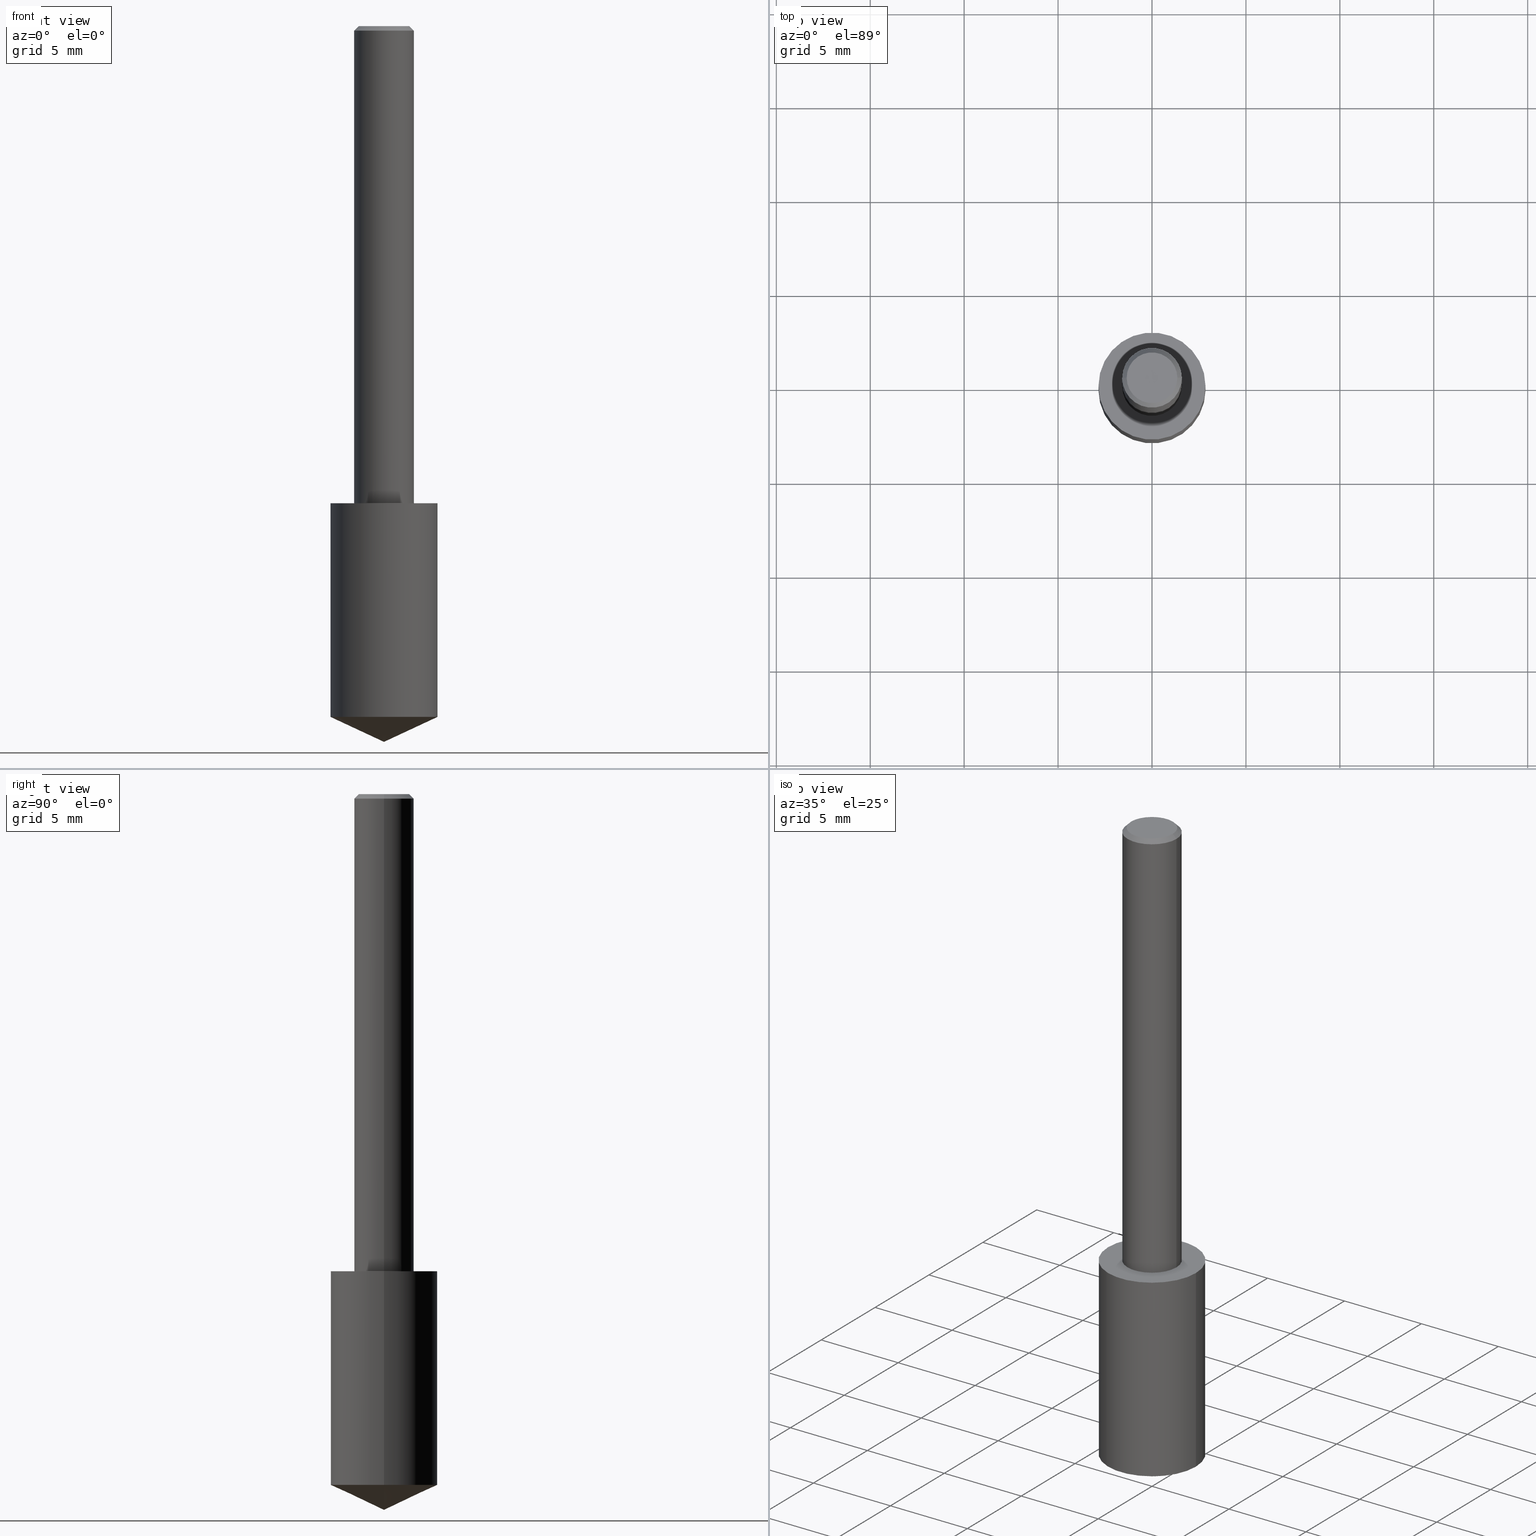
[diagram: canonical four-view strip — front | top / right | iso, engineering-drawing reading convention]
A machine part, canonical four-view strip (front | top / right | iso — engineering-drawing reading convention). The complete STEP part file that produces these views, byte-faithful:
ISO-10303-21;
HEADER;
FILE_DESCRIPTION (( 'STEP AP203' ),
    '1' );
FILE_NAME ('06154.STEP',
    '2024-04-30T18:31:42',
    ( '' ),
    ( '' ),
    'SwSTEP 2.0',
    'SolidWorks 2023',
    '' );
FILE_SCHEMA (( 'CONFIG_CONTROL_DESIGN' ));
ENDSEC;

DATA;
#1 = VECTOR ( 'NONE', #71, 39.37007874015748143 ) ;
#2 = CARTESIAN_POINT ( 'NONE',  ( 0.000000000000000000, 0.000000000000000000, 0.000000000000000000 ) ) ;
#3 = CARTESIAN_POINT ( 'NONE',  ( -7.487088864773345706E-50, 1.068957861474247695E-35, 3.061616997868395197E-21 ) ) ;
#4 = VERTEX_POINT ( 'NONE', #61 ) ;
#5 = ADVANCED_FACE ( 'NONE', ( #219 ), #203, .T. ) ;
#6 = COORDINATED_UNIVERSAL_TIME_OFFSET ( 5, 0, .BEHIND. ) ;
#7 = ORIENTED_EDGE ( 'NONE', *, *, #73, .T. ) ;
#8 = AXIS2_PLACEMENT_3D ( 'NONE', #19, #229, #197 ) ;
#9 = ORIENTED_EDGE ( 'NONE', *, *, #80, .F. ) ;
#10 = DIRECTION ( 'NONE',  ( -2.445468806185136597E-29, 3.491481338843145583E-15, 1.000000000000000000 ) ) ;
#11 = ADVANCED_FACE ( 'NONE', ( #253 ), #218, .T. ) ;
#12 = DIRECTION ( 'NONE',  ( 1.000000000000000000, -6.982962677686266711E-15, 0.000000000000000000 ) ) ;
#13 = ORIENTED_EDGE ( 'NONE', *, *, #117, .T. ) ;
#14 = DIRECTION ( 'NONE',  ( -2.445468806185136597E-29, 3.491481338843145583E-15, 1.000000000000000000 ) ) ;
#15 = AXIS2_PLACEMENT_3D ( 'NONE', #40, #328, #192 ) ;
#16 = CC_DESIGN_DATE_AND_TIME_ASSIGNMENT ( #148, #256, ( #119 ) ) ;
#17 = CARTESIAN_POINT ( 'NONE',  ( 0.06250000000000000000, -4.615137624123754923E-16, -0.009375000000000067307 ) ) ;
#18 = DIRECTION ( 'NONE',  ( 1.000000000000000000, -6.982962677686266711E-15, 4.876176775795935793E-29 ) ) ;
#19 = CARTESIAN_POINT ( 'NONE',  ( 2.445468806185137438E-29, -3.491481338843146371E-15, -1.000000000000000222 ) ) ;
#20 = CARTESIAN_POINT ( 'NONE',  ( 0.05312499999999999861, -4.129888592719939842E-16, 3.061617000609493422E-21 ) ) ;
#21 = PERSON_AND_ORGANIZATION ( #316, #317 ) ;
#22 = VECTOR ( 'NONE', #162, 39.37007874015748143 ) ;
#23 = EDGE_CURVE ( 'NONE', #191, #187, #283, .T. ) ;
#24 = DIRECTION ( 'NONE',  ( 1.000000000000000000, 0.000000000000000000, 0.000000000000000000 ) ) ;
#25 = EDGE_LOOP ( 'NONE', ( #326, #85 ) ) ;
#26 = DIRECTION ( 'NONE',  ( -2.445468806185136877E-29, 3.491481338843145188E-15, 1.000000000000000000 ) ) ;
#27 = CIRCLE ( 'NONE', #15, 0.1122000000000000081 ) ;
#28 = DIRECTION ( 'NONE',  ( 0.000000000000000000, 0.000000000000000000, 1.000000000000000000 ) ) ;
#29 = AXIS2_PLACEMENT_3D ( 'NONE', #280, #113, #223 ) ;
#30 = PERSON_AND_ORGANIZATION_ROLE ( 'classification_officer' ) ;
#31 = DIRECTION ( 'NONE',  ( -2.445468806185136597E-29, 3.491481338843145583E-15, 1.000000000000000000 ) ) ;
#32 = ORIENTED_EDGE ( 'NONE', *, *, #117, .F. ) ;
#33 = CARTESIAN_POINT ( 'NONE',  ( 3.668203209277704895E-29, -5.237222008264718177E-15, -1.500000000000000222 ) ) ;
#34 = VERTEX_POINT ( 'NONE', #108 ) ;
#35 = MANIFOLD_SOLID_BREP ( 'Body-Move/Copy2[1]', #49 ) ;
#36 = ORIENTED_EDGE ( 'NONE', *, *, #255, .T. ) ;
#37 =( GEOMETRIC_REPRESENTATION_CONTEXT ( 3 ) GLOBAL_UNCERTAINTY_ASSIGNED_CONTEXT ( ( #133 ) ) GLOBAL_UNIT_ASSIGNED_CONTEXT ( ( #286, #102, #126 ) ) REPRESENTATION_CONTEXT ( 'NONE', 'WORKASPACE' ) );
#38 = LINE ( 'NONE', #169, #158 ) ;
#39 = EDGE_LOOP ( 'NONE', ( #64, #318, #333 ) ) ;
#40 = CARTESIAN_POINT ( 'NONE',  ( 3.540256967915716631E-29, -5.054548684867320994E-15, -1.447680280755009541 ) ) ;
#41 = VERTEX_POINT ( 'NONE', #159 ) ;
#42 = DIRECTION ( 'NONE',  ( 1.000000000000000000, -6.982962677686264344E-15, 0.000000000000000000 ) ) ;
#43 = EDGE_CURVE ( 'NONE', #164, #194, #213, .T. ) ;
#44 = CARTESIAN_POINT ( 'NONE',  ( 0.1121999999999999803, -5.838037097303720195E-15, -1.447680280755009541 ) ) ;
#45 = DIRECTION ( 'NONE',  ( -2.445468806185136597E-29, 3.491481338843145583E-15, 1.000000000000000000 ) ) ;
#46 = CALENDAR_DATE ( 2024, 30, 4 ) ;
#47 = FACE_OUTER_BOUND ( 'NONE', #295, .T. ) ;
#48 = EDGE_CURVE ( 'NONE', #291, #191, #268, .T. ) ;
#49 = CLOSED_SHELL ( 'NONE', ( #52, #5, #264, #226, #129 ) ) ;
#50 = PERSON_AND_ORGANIZATION ( #316, #317 ) ;
#51 = CARTESIAN_POINT ( 'NONE',  ( 0.1122000000000000081, -4.274969751279545967E-15, -1.000000000000000222 ) ) ;
#52 = ADVANCED_FACE ( 'NONE', ( #246 ), #178, .T. ) ;
#53 = APPLICATION_PROTOCOL_DEFINITION ( 'international standard', 'config_control_design', 1994, #199 ) ;
#54 = AXIS2_PLACEMENT_3D ( 'NONE', #195, #45, #97 ) ;
#55 = SECURITY_CLASSIFICATION_LEVEL ( 'unclassified' ) ;
#56 = CARTESIAN_POINT ( 'NONE',  ( -9.261009624683002666E-28, 1.322226732217803884E-13, 37.87007874015748143 ) ) ;
#57 = CALENDAR_DATE ( 2024, 30, 4 ) ;
#58 = AXIS2_PLACEMENT_3D ( 'NONE', #330, #251, #42 ) ;
#59 = ORIENTED_EDGE ( 'NONE', *, *, #131, .T. ) ;
#60 = DIRECTION ( 'NONE',  ( -2.445468806185136597E-29, 3.491481338843145583E-15, 1.000000000000000000 ) ) ;
#61 = CARTESIAN_POINT ( 'NONE',  ( -0.05312499999999999861, 3.873362110279099094E-16, 3.061616995216862494E-21 ) ) ;
#62 = ORIENTED_EDGE ( 'NONE', *, *, #48, .T. ) ;
#63 = APPROVAL ( #163, 'UNSPECIFIED' ) ;
#64 = ORIENTED_EDGE ( 'NONE', *, *, #48, .F. ) ;
#65 = VECTOR ( 'NONE', #238, 39.37007874015748143 ) ;
#66 = CARTESIAN_POINT ( 'NONE',  ( -0.1122000000000000081, -2.694252389320313807E-15, -1.000000000000000222 ) ) ;
#67 = CARTESIAN_POINT ( 'NONE',  ( 2.292627005798582375E-31, -3.273263755165472650E-17, -0.009375000000000067307 ) ) ;
#68 = DIRECTION ( 'NONE',  ( -2.445468806185136597E-29, 3.491481338843145583E-15, 1.000000000000000000 ) ) ;
#69 = CARTESIAN_POINT ( 'NONE',  ( 3.295575427436013653E-29, -2.274080272147841464E-15, -1.000000000000000222 ) ) ;
#70 = DIRECTION ( 'NONE',  ( -2.445468806185136597E-29, 3.491481338843145583E-15, 1.000000000000000000 ) ) ;
#71 = DIRECTION ( 'NONE',  ( -0.7071067811865450192, 2.468850131082230634E-15, -0.7071067811865500152 ) ) ;
#72 = CLOSED_SHELL ( 'NONE', ( #107, #11, #141, #84, #301, #232 ) ) ;
#73 = EDGE_CURVE ( 'NONE', #4, #89, #304, .T. ) ;
#74 = DIRECTION ( 'NONE',  ( -2.445468806185136597E-29, 3.491481338843145583E-15, 1.000000000000000000 ) ) ;
#75 = APPROVAL ( #123, 'UNSPECIFIED' ) ;
#76 = PERSON_AND_ORGANIZATION_ROLE ( 'creator' ) ;
#77 = CIRCLE ( 'NONE', #234, 0.1122000000000000081 ) ;
#78 = DIRECTION ( 'NONE',  ( 2.445468806185136597E-29, -3.491481338843145583E-15, -1.000000000000000000 ) ) ;
#79 = DIRECTION ( 'NONE',  ( -2.445468806185136597E-29, 3.491481338843145583E-15, 1.000000000000000000 ) ) ;
#80 = EDGE_CURVE ( 'NONE', #214, #164, #274, .T. ) ;
#81 = ORIENTED_EDGE ( 'NONE', *, *, #298, .T. ) ;
#82 = AXIS2_PLACEMENT_3D ( 'NONE', #153, #28, #24 ) ;
#83 = DATE_AND_TIME ( #57, #145 ) ;
#84 = ADVANCED_FACE ( 'NONE', ( #87 ), #332, .T. ) ;
#85 = ORIENTED_EDGE ( 'NONE', *, *, #188, .T. ) ;
#86 = ORIENTED_EDGE ( 'NONE', *, *, #327, .T. ) ;
#87 = FACE_OUTER_BOUND ( 'NONE', #134, .T. ) ;
#88 = ORIENTED_EDGE ( 'NONE', *, *, #23, .T. ) ;
#89 = VERTEX_POINT ( 'NONE', #20 ) ;
#90 = DIRECTION ( 'NONE',  ( 1.000000000000000000, -6.982962677686266711E-15, 0.000000000000000000 ) ) ;
#91 = ADVANCED_BREP_SHAPE_REPRESENTATION ( '06154', ( #35, #263, #82 ), #37 ) ;
#92 = CC_DESIGN_PERSON_AND_ORGANIZATION_ASSIGNMENT ( #216, #30, ( #289 ) ) ;
#93 = ORIENTED_EDGE ( 'NONE', *, *, #202, .T. ) ;
#94 = DIRECTION ( 'NONE',  ( 1.000000000000000000, -6.982962677686266711E-15, 0.000000000000000000 ) ) ;
#95 = FACE_OUTER_BOUND ( 'NONE', #271, .T. ) ;
#96 = LINE ( 'NONE', #300, #1 ) ;
#97 = DIRECTION ( 'NONE',  ( 1.000000000000000000, -6.982962677686266711E-15, 4.876176628004948512E-29 ) ) ;
#98 = CIRCLE ( 'NONE', #144, 0.06250000000000000000 ) ;
#99 = COORDINATED_UNIVERSAL_TIME_OFFSET ( 5, 0, .BEHIND. ) ;
#100 = FACE_OUTER_BOUND ( 'NONE', #135, .T. ) ;
#101 = AXIS2_PLACEMENT_3D ( 'NONE', #69, #325, #225 ) ;
#102 =( NAMED_UNIT ( * ) PLANE_ANGLE_UNIT ( ) SI_UNIT ( $, .RADIAN. ) );
#103 = ORIENTED_EDGE ( 'NONE', *, *, #255, .F. ) ;
#104 = CALENDAR_DATE ( 2024, 30, 4 ) ;
#105 = DATE_TIME_ROLE ( 'classification_date' ) ;
#106 = AXIS2_PLACEMENT_3D ( 'NONE', #56, #70, #240 ) ;
#107 = ADVANCED_FACE ( 'NONE', ( #47 ), #266, .T. ) ;
#108 = CARTESIAN_POINT ( 'NONE',  ( -0.1122000000000000081, -3.475786062332401316E-15, -1.000000000000000222 ) ) ;
#109 = ORIENTED_EDGE ( 'NONE', *, *, #131, .F. ) ;
#110 = AXIS2_PLACEMENT_3D ( 'NONE', #121, #228, #307 ) ;
#111 = EDGE_LOOP ( 'NONE', ( #81, #139, #272, #161 ) ) ;
#112 = CARTESIAN_POINT ( 'NONE',  ( 0.000000000000000000, 0.000000000000000000, 0.000000000000000000 ) ) ;
#113 = DIRECTION ( 'NONE',  ( -2.445468806185136597E-29, 3.491481338843145583E-15, 1.000000000000000000 ) ) ;
#114 = EDGE_CURVE ( 'NONE', #194, #243, #210, .T. ) ;
#115 = DIRECTION ( 'NONE',  ( 1.000000000000000000, -6.982962677686265922E-15, 4.876176775795935793E-29 ) ) ;
#116 = VECTOR ( 'NONE', #276, 39.37007874015748143 ) ;
#117 = EDGE_CURVE ( 'NONE', #214, #243, #38, .T. ) ;
#118 = PLANE ( 'NONE',  #101 ) ;
#119 = PRODUCT_DEFINITION ( 'UNKNOWN', '', #132, #181 ) ;
#120 = CARTESIAN_POINT ( 'NONE',  ( 0.06250000000000012490, -3.927916506198539224E-15, -1.000000000000000222 ) ) ;
#121 = CARTESIAN_POINT ( 'NONE',  ( 3.540256967915716631E-29, -5.054548684867320994E-15, -1.447680280755009541 ) ) ;
#122 = DIRECTION ( 'NONE',  ( 0.9063077870366507138, -4.853149677051390623E-15, 0.4226182617406978315 ) ) ;
#123 = APPROVAL_STATUS ( 'not_yet_approved' ) ;
#124 = MECHANICAL_CONTEXT ( 'NONE', #199, 'mechanical' ) ;
#125 = PRODUCT ( '06154', '06154', '', ( #124 ) ) ;
#126 =( NAMED_UNIT ( * ) SI_UNIT ( $, .STERADIAN. ) SOLID_ANGLE_UNIT ( ) );
#127 = AXIS2_PLACEMENT_3D ( 'NONE', #334, #273, #277 ) ;
#128 = APPROVAL_ROLE ( '' ) ;
#129 = ADVANCED_FACE ( 'NONE', ( #193 ), #118, .F. ) ;
#130 = AXIS2_PLACEMENT_3D ( 'NONE', #112, #305, #258 ) ;
#131 = EDGE_CURVE ( 'NONE', #164, #214, #299, .T. ) ;
#132 = PRODUCT_DEFINITION_FORMATION_WITH_SPECIFIED_SOURCE ( 'ANY', '', #125, .NOT_KNOWN. ) ;
#133 = UNCERTAINTY_MEASURE_WITH_UNIT (LENGTH_MEASURE( 1.000000000000000082E-05 ), #286, 'distance_accuracy_value', 'NONE');
#134 = EDGE_LOOP ( 'NONE', ( #242, #59, #13, #137 ) ) ;
#135 = EDGE_LOOP ( 'NONE', ( #184, #320, #36, #217 ) ) ;
#136 = VECTOR ( 'NONE', #26, 39.37007874015748143 ) ;
#137 = ORIENTED_EDGE ( 'NONE', *, *, #114, .F. ) ;
#138 = CYLINDRICAL_SURFACE ( 'NONE', #8, 0.1122000000000000081 ) ;
#139 = ORIENTED_EDGE ( 'NONE', *, *, #292, .T. ) ;
#140 = LINE ( 'NONE', #66, #173 ) ;
#141 = ADVANCED_FACE ( 'NONE', ( #95 ), #302, .F. ) ;
#142 = ORIENTED_EDGE ( 'NONE', *, *, #152, .F. ) ;
#143 = FACE_OUTER_BOUND ( 'NONE', #209, .T. ) ;
#144 = AXIS2_PLACEMENT_3D ( 'NONE', #335, #149, #155 ) ;
#145 = LOCAL_TIME ( 14, 31, 42.00000000000000000, #340 ) ;
#146 = CARTESIAN_POINT ( 'NONE',  ( -0.1121999999999999803, -4.257319735344488824E-15, -1.447680280755009541 ) ) ;
#147 = DIRECTION ( 'NONE',  ( -2.445468806185136877E-29, 3.491481338843145188E-15, 1.000000000000000000 ) ) ;
#148 = DATE_AND_TIME ( #46, #186 ) ;
#149 = DIRECTION ( 'NONE',  ( -2.445468806185136597E-29, 3.491481338843145583E-15, 1.000000000000000000 ) ) ;
#150 = VECTOR ( 'NONE', #122, 39.37007874015748143 ) ;
#151 = CC_DESIGN_PERSON_AND_ORGANIZATION_ASSIGNMENT ( #201, #76, ( #132 ) ) ;
#152 = EDGE_CURVE ( 'NONE', #291, #187, #297, .T. ) ;
#153 = CARTESIAN_POINT ( 'NONE',  ( 0.000000000000000000, 0.000000000000000000, 0.000000000000000000 ) ) ;
#154 = PRODUCT_DEFINITION_SHAPE ( 'NONE', 'NONE',  #119 ) ;
#155 = DIRECTION ( 'NONE',  ( 1.000000000000000000, -6.982962677686266711E-15, 0.000000000000000000 ) ) ;
#156 = CC_DESIGN_PERSON_AND_ORGANIZATION_ASSIGNMENT ( #207, #176, ( #119 ) ) ;
#157 = COORDINATED_UNIVERSAL_TIME_OFFSET ( 5, 0, .BEHIND. ) ;
#158 = VECTOR ( 'NONE', #147, 39.37007874015748143 ) ;
#159 = CARTESIAN_POINT ( 'NONE',  ( 0.1122000000000000081, -4.274969751279545178E-15, -1.000000000000000222 ) ) ;
#160 = AXIS2_PLACEMENT_3D ( 'NONE', #175, #10, #90 ) ;
#161 = ORIENTED_EDGE ( 'NONE', *, *, #327, .F. ) ;
#162 = DIRECTION ( 'NONE',  ( -2.445468806185136877E-29, 3.491481338843145188E-15, 1.000000000000000000 ) ) ;
#163 = APPROVAL_STATUS ( 'not_yet_approved' ) ;
#164 = VERTEX_POINT ( 'NONE', #248 ) ;
#165 = APPROVAL_PERSON_ORGANIZATION ( #204, #288, #128 ) ;
#166 = APPROVAL_PERSON_ORGANIZATION ( #21, #75, #231 ) ;
#167 = ORIENTED_EDGE ( 'NONE', *, *, #189, .T. ) ;
#168 = DIRECTION ( 'NONE',  ( -2.445468806185136877E-29, 3.491481338843145188E-15, 1.000000000000000000 ) ) ;
#169 = CARTESIAN_POINT ( 'NONE',  ( 0.06250000000000006939, -4.364351673553921624E-16, 3.047610484872463374E-30 ) ) ;
#170 = CC_DESIGN_PERSON_AND_ORGANIZATION_ASSIGNMENT ( #315, #235, ( #125 ) ) ;
#171 = DIRECTION ( 'NONE',  ( -2.438088387897960049E-29, 3.491481338843145188E-15, 1.000000000000000000 ) ) ;
#172 = EDGE_CURVE ( 'NONE', #41, #34, #215, .T. ) ;
#173 = VECTOR ( 'NONE', #168, 39.37007874015748143 ) ;
#174 = LOCAL_TIME ( 14, 31, 42.00000000000000000, #6 ) ;
#175 = CARTESIAN_POINT ( 'NONE',  ( -9.261009624683002666E-28, 1.322226732217803884E-13, 37.87007874015748143 ) ) ;
#176 = PERSON_AND_ORGANIZATION_ROLE ( 'creator' ) ;
#177 = APPROVAL_DATE_TIME ( #233, #75 ) ;
#178 = CYLINDRICAL_SURFACE ( 'NONE', #224, 0.1122000000000000081 ) ;
#179 = AXIS2_PLACEMENT_3D ( 'NONE', #245, #171, #115 ) ;
#180 = CARTESIAN_POINT ( 'NONE',  ( 2.292627005798582375E-31, -3.273263755165472650E-17, -0.009375000000000067307 ) ) ;
#181 = DESIGN_CONTEXT ( 'detailed design', #222, 'design' ) ;
#182 = CC_DESIGN_SECURITY_CLASSIFICATION ( #289, ( #132 ) ) ;
#183 = SHAPE_DEFINITION_REPRESENTATION ( #154, #91 ) ;
#184 = ORIENTED_EDGE ( 'NONE', *, *, #202, .F. ) ;
#185 = CARTESIAN_POINT ( 'NONE',  ( -0.06250000000000006939, 4.440892098500631092E-16, -3.074334431409319267E-30 ) ) ;
#186 = LOCAL_TIME ( 14, 31, 42.00000000000000000, #281 ) ;
#187 = VERTEX_POINT ( 'NONE', #44 ) ;
#188 = EDGE_CURVE ( 'NONE', #34, #41, #77, .T. ) ;
#189 = EDGE_CURVE ( 'NONE', #89, #4, #279, .T. ) ;
#190 = CARTESIAN_POINT ( 'NONE',  ( 3.668203209277704895E-29, -5.237222008264718177E-15, -1.500000000000000222 ) ) ;
#191 = VERTEX_POINT ( 'NONE', #146 ) ;
#192 = DIRECTION ( 'NONE',  ( 1.000000000000000000, -6.982962677686266711E-15, 0.000000000000000000 ) ) ;
#193 = FACE_OUTER_BOUND ( 'NONE', #25, .T. ) ;
#194 = VERTEX_POINT ( 'NONE', #252 ) ;
#195 = CARTESIAN_POINT ( 'NONE',  ( -7.487088864773345706E-50, 1.068957861474247695E-35, 3.061616997868395197E-21 ) ) ;
#196 = CONICAL_SURFACE ( 'NONE', #244, 0.06250000000000000000, 0.7853981633974447263 ) ;
#197 = DIRECTION ( 'NONE',  ( 1.000000000000000000, -6.982962677686266711E-15, 0.000000000000000000 ) ) ;
#198 = CALENDAR_DATE ( 2024, 30, 4 ) ;
#199 = APPLICATION_CONTEXT ( 'configuration controlled 3d designs of mechanical parts and assemblies' ) ;
#200 = CC_DESIGN_PERSON_AND_ORGANIZATION_ASSIGNMENT ( #50, #259, ( #132 ) ) ;
#201 = PERSON_AND_ORGANIZATION ( #316, #317 ) ;
#202 = EDGE_CURVE ( 'NONE', #89, #243, #254, .T. ) ;
#203 = CONICAL_SURFACE ( 'NONE', #106, 84.42940631927434936, 1.134464013796316006 ) ;
#204 = PERSON_AND_ORGANIZATION ( #316, #317 ) ;
#205 = DIRECTION ( 'NONE',  ( -1.000000000000000000, 6.982962677686266711E-15, 0.000000000000000000 ) ) ;
#206 = ORIENTED_EDGE ( 'NONE', *, *, #323, .F. ) ;
#207 = PERSON_AND_ORGANIZATION ( #316, #317 ) ;
#208 = CALENDAR_DATE ( 2024, 30, 4 ) ;
#209 = EDGE_LOOP ( 'NONE', ( #287, #88, #86, #250 ) ) ;
#210 = CIRCLE ( 'NONE', #321, 0.06250000000000000000 ) ;
#211 = DIMENSIONAL_EXPONENTS ( 1.000000000000000000, 0.000000000000000000, 0.000000000000000000, 0.000000000000000000, 0.000000000000000000, 0.000000000000000000, 0.000000000000000000 ) ;
#212 = ORIENTED_EDGE ( 'NONE', *, *, #80, .T. ) ;
#213 = LINE ( 'NONE', #185, #22 ) ;
#214 = VERTEX_POINT ( 'NONE', #120 ) ;
#215 = CIRCLE ( 'NONE', #29, 0.1122000000000000081 ) ;
#216 = PERSON_AND_ORGANIZATION ( #316, #317 ) ;
#217 = ORIENTED_EDGE ( 'NONE', *, *, #114, .T. ) ;
#218 = CYLINDRICAL_SURFACE ( 'NONE', #261, 0.06250000000000006939 ) ;
#219 = FACE_OUTER_BOUND ( 'NONE', #338, .T. ) ;
#220 = ORIENTED_EDGE ( 'NONE', *, *, #298, .F. ) ;
#221 = CARTESIAN_POINT ( 'NONE',  ( 0.06250000000000000000, -4.691678049070464390E-16, -0.009375000000000067307 ) ) ;
#222 = APPLICATION_CONTEXT ( 'configuration controlled 3d designs of mechanical parts and assemblies' ) ;
#223 = DIRECTION ( 'NONE',  ( 1.000000000000000000, -6.982962677686266711E-15, 0.000000000000000000 ) ) ;
#224 = AXIS2_PLACEMENT_3D ( 'NONE', #290, #31, #241 ) ;
#225 = DIRECTION ( 'NONE',  ( -1.000000000000000000, 6.982962677686265922E-15, -4.876176775795935793E-29 ) ) ;
#226 = ADVANCED_FACE ( 'NONE', ( #143 ), #138, .T. ) ;
#227 = FACE_OUTER_BOUND ( 'NONE', #322, .T. ) ;
#228 = DIRECTION ( 'NONE',  ( -2.445468806185136597E-29, 3.491481338843145583E-15, 1.000000000000000000 ) ) ;
#229 = DIRECTION ( 'NONE',  ( -2.445468806185136597E-29, 3.491481338843145583E-15, 1.000000000000000000 ) ) ;
#230 = LOCAL_TIME ( 14, 31, 42.00000000000000000, #99 ) ;
#231 = APPROVAL_ROLE ( '' ) ;
#232 = ADVANCED_FACE ( 'NONE', ( #227 ), #331, .F. ) ;
#233 = DATE_AND_TIME ( #198, #230 ) ;
#234 = AXIS2_PLACEMENT_3D ( 'NONE', #308, #74, #94 ) ;
#235 = PERSON_AND_ORGANIZATION_ROLE ( 'design_owner' ) ;
#236 = CC_DESIGN_APPROVAL ( #75, ( #132 ) ) ;
#237 = AXIS2_PLACEMENT_3D ( 'NONE', #265, #285, #324 ) ;
#238 = DIRECTION ( 'NONE',  ( -0.9063077870366507138, 7.915267918739014631E-15, 0.4226182617406978315 ) ) ;
#239 = APPROVAL_DATE_TIME ( #270, #63 ) ;
#240 = DIRECTION ( 'NONE',  ( 1.000000000000000000, -6.982962677686266711E-15, 0.000000000000000000 ) ) ;
#241 = DIRECTION ( 'NONE',  ( 1.000000000000000000, -6.982962677686266711E-15, 0.000000000000000000 ) ) ;
#242 = ORIENTED_EDGE ( 'NONE', *, *, #43, .F. ) ;
#243 = VERTEX_POINT ( 'NONE', #221 ) ;
#244 = AXIS2_PLACEMENT_3D ( 'NONE', #180, #78, #205 ) ;
#245 = CARTESIAN_POINT ( 'NONE',  ( 2.445468806185137438E-29, -3.491481338843146371E-15, -1.000000000000000222 ) ) ;
#246 = FACE_OUTER_BOUND ( 'NONE', #111, .T. ) ;
#247 = EDGE_LOOP ( 'NONE', ( #212, #275, #206, #32 ) ) ;
#248 = CARTESIAN_POINT ( 'NONE',  ( -0.06250000000000012490, -1.318017778347335489E-15, -1.000000000000000222 ) ) ;
#249 = DIRECTION ( 'NONE',  ( 1.000000000000000000, -6.982962677686266711E-15, 4.876176628004948512E-29 ) ) ;
#250 = ORIENTED_EDGE ( 'NONE', *, *, #188, .F. ) ;
#251 = DIRECTION ( 'NONE',  ( -2.445468806185136597E-29, 3.491481338843145583E-15, 1.000000000000000000 ) ) ;
#252 = CARTESIAN_POINT ( 'NONE',  ( -0.06250000000000000000, -1.318017778347336672E-15, -0.009375000000000067307 ) ) ;
#253 = FACE_OUTER_BOUND ( 'NONE', #247, .T. ) ;
#254 = LINE ( 'NONE', #17, #116 ) ;
#255 = EDGE_CURVE ( 'NONE', #4, #194, #96, .T. ) ;
#256 = DATE_TIME_ROLE ( 'creation_date' ) ;
#257 = AXIS2_PLACEMENT_3D ( 'NONE', #3, #79, #249 ) ;
#258 = DIRECTION ( 'NONE',  ( 1.000000000000000000, -6.982962677686266711E-15, 4.876176775795935793E-29 ) ) ;
#259 = PERSON_AND_ORGANIZATION_ROLE ( 'design_supplier' ) ;
#260 = CC_DESIGN_DATE_AND_TIME_ASSIGNMENT ( #83, #105, ( #289 ) ) ;
#261 = AXIS2_PLACEMENT_3D ( 'NONE', #2, #60, #18 ) ;
#262 = DATE_AND_TIME ( #104, #306 ) ;
#263 = MANIFOLD_SOLID_BREP ( 'Body-Move/Copy2[2]', #72 ) ;
#264 = ADVANCED_FACE ( 'NONE', ( #303 ), #312, .T. ) ;
#265 = CARTESIAN_POINT ( 'NONE',  ( 2.292627005798582375E-31, -3.273263755165472650E-17, -0.009375000000000067307 ) ) ;
#266 = CONICAL_SURFACE ( 'NONE', #237, 0.06250000000000000000, 0.7853981633974447263 ) ;
#267 = CC_DESIGN_APPROVAL ( #63, ( #289 ) ) ;
#268 = LINE ( 'NONE', #33, #65 ) ;
#269 = CARTESIAN_POINT ( 'NONE',  ( 2.445468806185137438E-29, -3.491481338843146371E-15, -1.000000000000000222 ) ) ;
#270 = DATE_AND_TIME ( #208, #174 ) ;
#271 = EDGE_LOOP ( 'NONE', ( #9, #109 ) ) ;
#272 = ORIENTED_EDGE ( 'NONE', *, *, #172, .F. ) ;
#273 = DIRECTION ( 'NONE',  ( 2.438088387897960049E-29, -3.491481338843145188E-15, -1.000000000000000000 ) ) ;
#274 = CIRCLE ( 'NONE', #336, 0.06250000000000012490 ) ;
#275 = ORIENTED_EDGE ( 'NONE', *, *, #43, .T. ) ;
#276 = DIRECTION ( 'NONE',  ( 0.7071067811865450192, -7.319954787623246579E-15, -0.7071067811865500152 ) ) ;
#277 = DIRECTION ( 'NONE',  ( -1.000000000000000000, 6.982962677686265922E-15, -4.876176775795935793E-29 ) ) ;
#278 = CARTESIAN_POINT ( 'NONE',  ( 3.668203209277704895E-29, -5.237222008264718177E-15, -1.500000000000000222 ) ) ;
#279 = CIRCLE ( 'NONE', #54, 0.05312499999999999861 ) ;
#280 = CARTESIAN_POINT ( 'NONE',  ( 2.445468806185136877E-29, -3.491481338843145977E-15, -1.000000000000000222 ) ) ;
#281 = COORDINATED_UNIVERSAL_TIME_OFFSET ( 5, 0, .BEHIND. ) ;
#282 = PRODUCT_RELATED_PRODUCT_CATEGORY ( 'detail', '', ( #125 ) ) ;
#283 = CIRCLE ( 'NONE', #110, 0.1122000000000000081 ) ;
#284 = LENGTH_MEASURE_WITH_UNIT ( LENGTH_MEASURE( 0.02539999999999999897 ), #339 );
#285 = DIRECTION ( 'NONE',  ( 2.445468806185136597E-29, -3.491481338843145583E-15, -1.000000000000000000 ) ) ;
#286 =( CONVERSION_BASED_UNIT ( 'INCH', #284 ) LENGTH_UNIT ( ) NAMED_UNIT ( #211 ) );
#287 = ORIENTED_EDGE ( 'NONE', *, *, #292, .F. ) ;
#288 = APPROVAL ( #309, 'UNSPECIFIED' ) ;
#289 = SECURITY_CLASSIFICATION ( '', '', #55 ) ;
#290 = CARTESIAN_POINT ( 'NONE',  ( 2.445468806185137438E-29, -3.491481338843146371E-15, -1.000000000000000222 ) ) ;
#291 = VERTEX_POINT ( 'NONE', #190 ) ;
#292 = EDGE_CURVE ( 'NONE', #191, #34, #140, .T. ) ;
#293 = APPROVAL_ROLE ( '' ) ;
#294 = ORIENTED_EDGE ( 'NONE', *, *, #189, .F. ) ;
#295 = EDGE_LOOP ( 'NONE', ( #294, #93, #296, #103 ) ) ;
#296 = ORIENTED_EDGE ( 'NONE', *, *, #323, .T. ) ;
#297 = LINE ( 'NONE', #278, #150 ) ;
#298 = EDGE_CURVE ( 'NONE', #187, #191, #27, .T. ) ;
#299 = CIRCLE ( 'NONE', #58, 0.06250000000000012490 ) ;
#300 = CARTESIAN_POINT ( 'NONE',  ( -0.06250000000000000000, 4.037025298037369491E-16, -0.009375000000000067307 ) ) ;
#301 = ADVANCED_FACE ( 'NONE', ( #100 ), #196, .T. ) ;
#302 = PLANE ( 'NONE',  #179 ) ;
#303 = FACE_OUTER_BOUND ( 'NONE', #39, .T. ) ;
#304 = CIRCLE ( 'NONE', #257, 0.05312499999999999861 ) ;
#305 = DIRECTION ( 'NONE',  ( -2.445468806185136597E-29, 3.491481338843145583E-15, 1.000000000000000000 ) ) ;
#306 = LOCAL_TIME ( 14, 31, 42.00000000000000000, #157 ) ;
#307 = DIRECTION ( 'NONE',  ( 1.000000000000000000, -6.982962677686266711E-15, 0.000000000000000000 ) ) ;
#308 = CARTESIAN_POINT ( 'NONE',  ( 2.445468806185136877E-29, -3.491481338843145977E-15, -1.000000000000000222 ) ) ;
#309 = APPROVAL_STATUS ( 'not_yet_approved' ) ;
#310 = DIRECTION ( 'NONE',  ( 1.000000000000000000, -6.982962677686264344E-15, 0.000000000000000000 ) ) ;
#311 = APPROVAL_DATE_TIME ( #262, #288 ) ;
#312 = CONICAL_SURFACE ( 'NONE', #160, 84.42940631927434936, 1.134464013796316006 ) ;
#313 = CC_DESIGN_APPROVAL ( #288, ( #119 ) ) ;
#314 = LINE ( 'NONE', #51, #136 ) ;
#315 = PERSON_AND_ORGANIZATION ( #316, #317 ) ;
#316 = PERSON ( 'UNSPECIFIED', 'UNSPECIFIED', 'UNSPECIFIED', ('UNSPECIFIED'), ('UNSPECIFIED'), ('UNSPECIFIED') ) ;
#317 = ORGANIZATION ( 'UNSPECIFIED', 'UNSPECIFIED', '' ) ;
#318 = ORIENTED_EDGE ( 'NONE', *, *, #152, .T. ) ;
#319 = PERSON_AND_ORGANIZATION ( #316, #317 ) ;
#320 = ORIENTED_EDGE ( 'NONE', *, *, #73, .F. ) ;
#321 = AXIS2_PLACEMENT_3D ( 'NONE', #67, #14, #12 ) ;
#322 = EDGE_LOOP ( 'NONE', ( #7, #167 ) ) ;
#323 = EDGE_CURVE ( 'NONE', #243, #194, #98, .T. ) ;
#324 = DIRECTION ( 'NONE',  ( -1.000000000000000000, 6.982962677686266711E-15, 0.000000000000000000 ) ) ;
#325 = DIRECTION ( 'NONE',  ( 2.438088387897960049E-29, -3.491481338843145188E-15, -1.000000000000000000 ) ) ;
#326 = ORIENTED_EDGE ( 'NONE', *, *, #172, .T. ) ;
#327 = EDGE_CURVE ( 'NONE', #187, #41, #314, .T. ) ;
#328 = DIRECTION ( 'NONE',  ( -2.445468806185136597E-29, 3.491481338843145583E-15, 1.000000000000000000 ) ) ;
#329 = APPROVAL_PERSON_ORGANIZATION ( #319, #63, #293 ) ;
#330 = CARTESIAN_POINT ( 'NONE',  ( 2.445468806185137438E-29, -3.491481338843146371E-15, -1.000000000000000222 ) ) ;
#331 = PLANE ( 'NONE',  #127 ) ;
#332 = CYLINDRICAL_SURFACE ( 'NONE', #130, 0.06250000000000006939 ) ;
#333 = ORIENTED_EDGE ( 'NONE', *, *, #23, .F. ) ;
#334 = CARTESIAN_POINT ( 'NONE',  ( -3.743544432386672853E-50, 5.344789307371238476E-36, 1.530808498934197599E-21 ) ) ;
#335 = CARTESIAN_POINT ( 'NONE',  ( 2.292627005798582375E-31, -3.273263755165472650E-17, -0.009375000000000067307 ) ) ;
#336 = AXIS2_PLACEMENT_3D ( 'NONE', #269, #68, #310 ) ;
#337 = APPLICATION_PROTOCOL_DEFINITION ( 'international standard', 'config_control_design', 1994, #222 ) ;
#338 = EDGE_LOOP ( 'NONE', ( #142, #62, #220 ) ) ;
#339 =( LENGTH_UNIT ( ) NAMED_UNIT ( * ) SI_UNIT ( $, .METRE. ) );
#340 = COORDINATED_UNIVERSAL_TIME_OFFSET ( 5, 0, .BEHIND. ) ;
ENDSEC;
END-ISO-10303-21;
